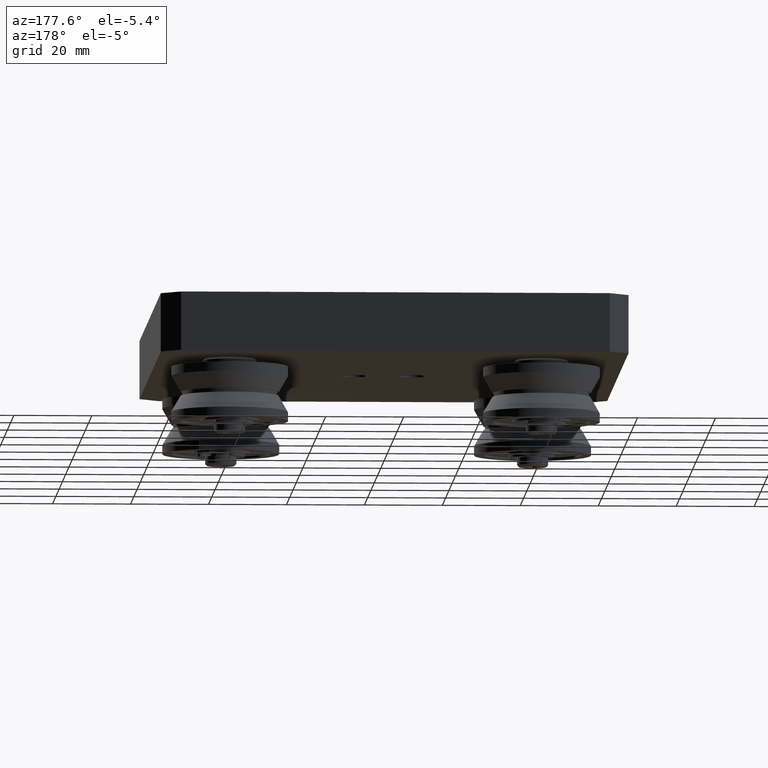
[diagram: clean part render]
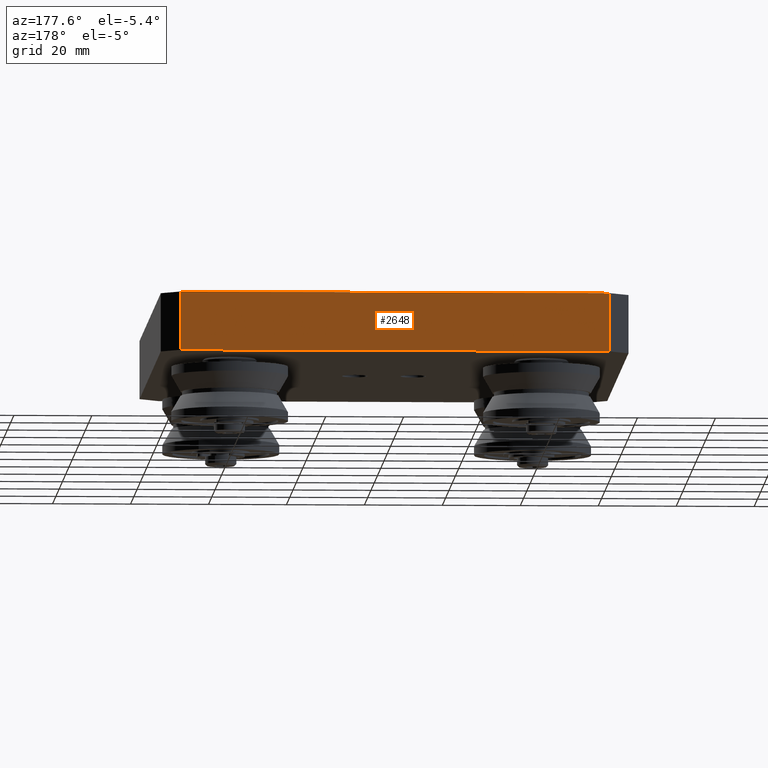
[diagram: same view with one face highlighted and labeled with its STEP entity id]
A machine part, auxiliary view. The second image highlights one B-rep face of the part: STEP entity #2648.
In plain terms, the highlighted planar face has unit normal (0, 1, 0).
Its self-contained STEP definition (entity closure, byte-faithful):
#391=FACE_OUTER_BOUND('',#574,.T.);
#574=EDGE_LOOP('',(#1884,#1885,#1886,#1887));
#748=LINE('',#4225,#963);
#754=LINE('',#4237,#969);
#762=LINE('',#4264,#977);
#782=LINE('',#4346,#997);
#963=VECTOR('',#3332,10.);
#969=VECTOR('',#3342,10.);
#977=VECTOR('',#3364,10.);
#997=VECTOR('',#3466,10.);
#1178=VERTEX_POINT('',#4222);
#1179=VERTEX_POINT('',#4224);
#1183=VERTEX_POINT('',#4236);
#1194=VERTEX_POINT('',#4260);
#1413=EDGE_CURVE('',#1178,#1179,#748,.T.);
#1419=EDGE_CURVE('',#1179,#1183,#754,.T.);
#1433=EDGE_CURVE('',#1183,#1194,#762,.T.);
#1471=EDGE_CURVE('',#1178,#1194,#782,.T.);
#1884=ORIENTED_EDGE('',*,*,#1413,.F.);
#1885=ORIENTED_EDGE('',*,*,#1471,.T.);
#1886=ORIENTED_EDGE('',*,*,#1433,.F.);
#1887=ORIENTED_EDGE('',*,*,#1419,.F.);
#2536=PLANE('',#3038);
#2648=ADVANCED_FACE('',(#391),#2536,.T.);
#3038=AXIS2_PLACEMENT_3D('',#4345,#3464,#3465);
#3332=DIRECTION('',(0.,0.,-1.));
#3342=DIRECTION('',(1.,0.,0.));
#3364=DIRECTION('',(0.,0.,1.));
#3464=DIRECTION('center_axis',(0.,1.,0.));
#3465=DIRECTION('ref_axis',(0.,0.,1.));
#3466=DIRECTION('',(1.,0.,0.));
#4222=CARTESIAN_POINT('',(-55.,70.,15.));
#4224=CARTESIAN_POINT('',(-55.,70.,0.));
#4225=CARTESIAN_POINT('',(-55.,70.,0.));
#4236=CARTESIAN_POINT('',(55.,70.,0.));
#4237=CARTESIAN_POINT('',(-60.,70.,0.));
#4260=CARTESIAN_POINT('',(55.,70.,15.));
#4264=CARTESIAN_POINT('',(55.,70.,0.));
#4345=CARTESIAN_POINT('Origin',(-60.,70.,0.));
#4346=CARTESIAN_POINT('',(-60.,70.,15.));